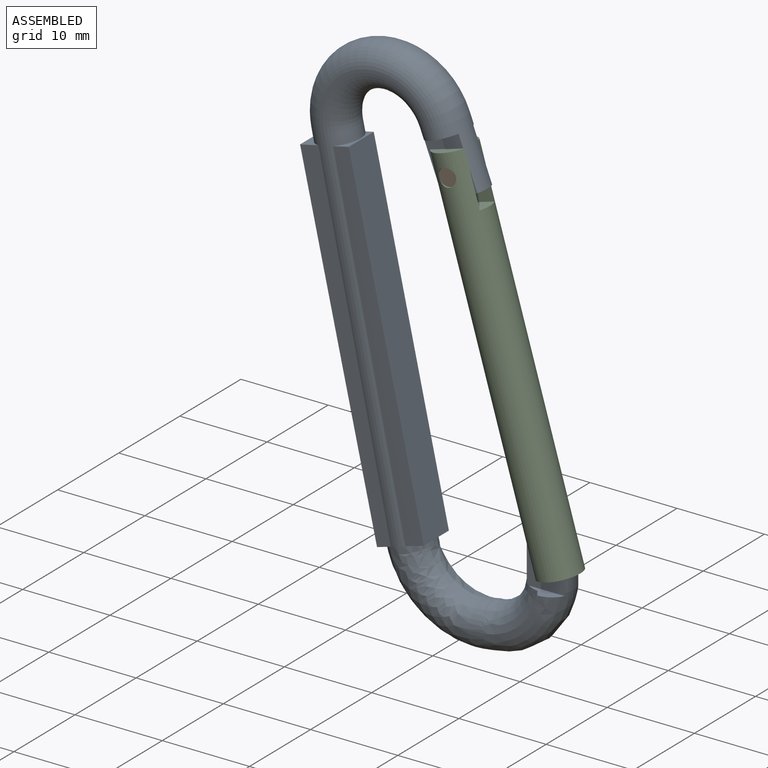
[diagram: assembled view]
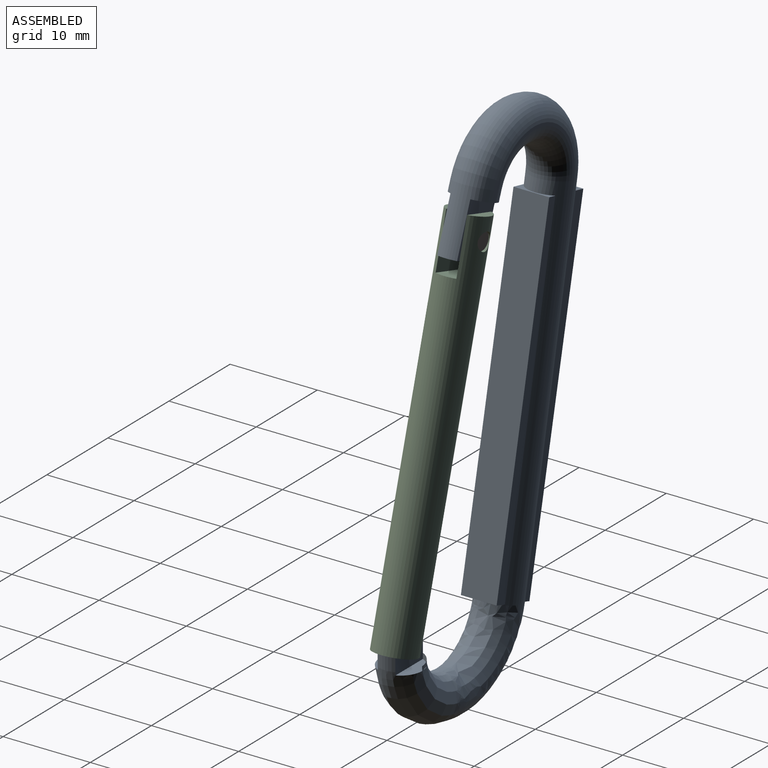
[diagram: assembled view, second angle]
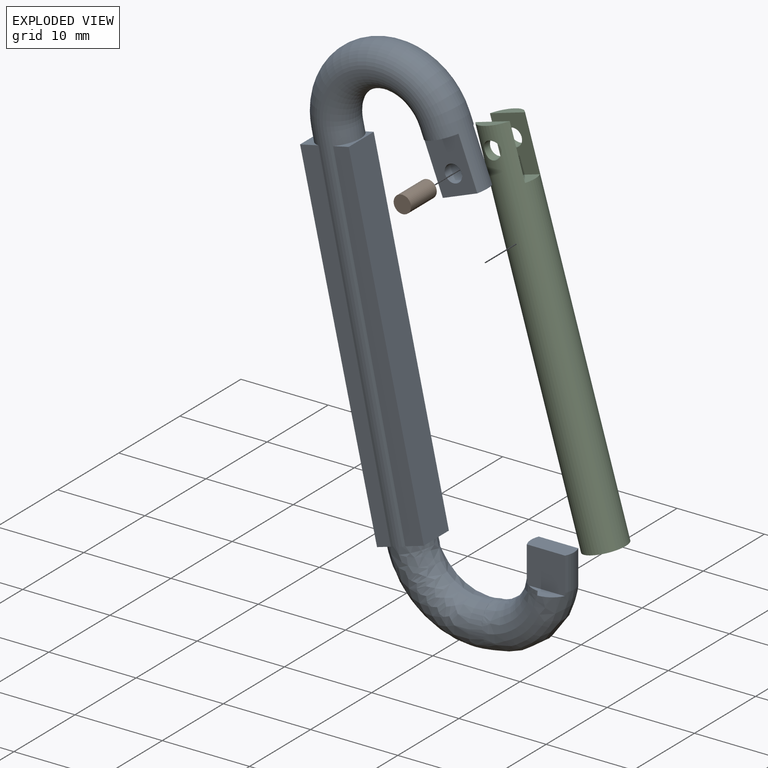
[diagram: exploded view]
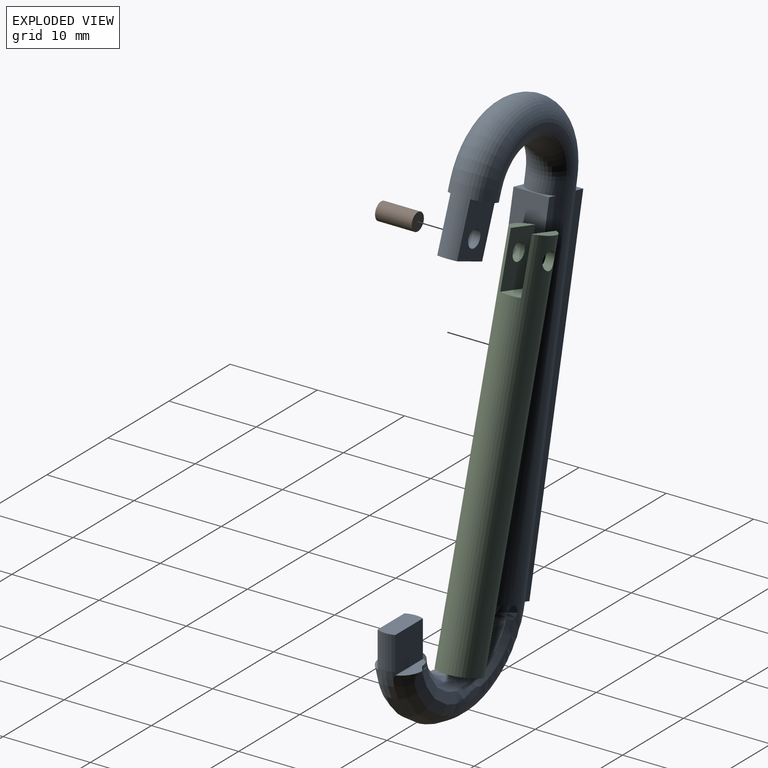
[diagram: exploded view, second angle]
ASSEMBLY  parts=3 mates=2
PART A: 30 faces, bbox 30.8x5.2x60.9 mm
  f0: cylinder r=2.46mm len=3.57mm, axis (0,0,1), area 7.6mm2, adj f3,f5,f24,f27
  f1: cylinder r=2.46mm len=3.85mm, axis (0,0,1), area 8.2mm2, adj f3,f5,f24,f27
  f2: cylinder r=2.46mm len=8.5mm, axis (-0.36,0,0.93), area 47.8mm2, adj f4,f6,f19,f20,f21,f22
  f3: plane 4.91x2.06mm, normal (0,0,1), area 9.8mm2, adj f0,f1,f24,f27
  f4: plane 4.58x2.32mm, normal (0.36,0,-0.93), area 11mm2, adj f2,f19,f21
  f5: bspline ~9.15x8.97mm, area 144.5mm2, adj f0,f1,f8,f23,f24,f25,f26,f27
  f6: torus R=6.46mm, axis (0,-1,0), area 297.1mm2, adj f2,f7
  f7: cylinder r=2.46mm len=41.69mm, axis (0.21,0,-0.98), area 240.6mm2, adj f6,f8,f10,f12,f13,f14,f16,f17
  f8: bspline ~12.84x9.48mm, area 198.8mm2, adj f5,f7,f10,f11,f17
  f9: plane 39.36x8.82mm, normal (-0.98,0,-0.22), area 165.4mm2, adj f10,f11,f12,f17
  f10: plane 39.83x10.4mm, normal (0,-1,0), area 76.4mm2, adj f7,f8,f9,f11,f12
  f11: plane 4.1x1.58mm, normal (0.28,0,-0.96), area 1.6mm2, adj f8,f9,f10,f17
  f12: plane 4.11x2.11mm, normal (-0.22,0,0.98), area 3.7mm2, adj f7,f9,f10,f17
  f13: plane 4.28x2.31mm, normal (0.28,0,-0.96), area 4mm2, adj f7,f14,f15,f18
  f14: plane 39.64x10.4mm, normal (0,-1,0), area 81mm2, adj f7,f13,f15,f16
  f15: plane 39.01x8.61mm, normal (0.98,0,0.22), area 163.8mm2, adj f13,f14,f16,f18
  f16: plane 4.12x1.81mm, normal (-0.22,0,0.98), area 2.4mm2, adj f7,f14,f15,f18
  f17: plane 39.65x9.63mm, normal (0,1,0), area 43.8mm2, adj f7,f8,f9,f11,f12
  f18: plane 39.41x9.61mm, normal (0,1,0), area 48.6mm2, adj f7,f13,f15,f16
  f19: plane 7.19x6.27mm, normal (0,1,0), area 23.3mm2, adj f2,f4,f20,f29
  f20: plane 4.11x1.59mm, normal (0.36,0,-0.93), area 4.3mm2, adj f2,f19
  f21: plane 7.13x6.12mm, normal (0,-1,0), area 22.3mm2, adj f2,f4,f22,f29
  f22: plane 3.96x1.53mm, normal (0.36,0,-0.93), area 3.7mm2, adj f2,f21
  f23: cylinder r=2.46mm len=2.26mm, axis (0,0,1), area 1.6mm2, adj f5,f24,f25
  f24: plane 4.55x4.24mm, normal (0,1,0), area 19mm2, adj f0,f1,f3,f5,f23,f25
  f25: plane 4.78x1.8mm, normal (0,0,1), area 4.8mm2, adj f5,f23,f24
  f26: cylinder r=2.46mm len=2.2mm, axis (0,0,1), area 1.5mm2, adj f5,f27,f28
  f27: plane 4.43x4.24mm, normal (0,-1,0), area 18.4mm2, adj f0,f1,f3,f5,f26,f28
  f28: plane 4.61x1.62mm, normal (0,0,1), area 4.2mm2, adj f5,f26,f27
  f29: cylinder r=1mm len=2.32mm, axis (0,-1,0), area 14.6mm2, adj f19,f21
PART B: 3 faces, bbox 2x4.2x2 mm
  f0: cylinder r=1mm len=4.2mm, axis (0,1,0), area 26.4mm2, adj f1,f2
  f1: plane 2x2mm, normal (0,-1,0), area 3.1mm2, adj f0
  f2: plane 2x2mm, normal (0,1,0), area 3.1mm2, adj f0
PART C: 13 faces, bbox 4.8x43x4.8 mm
  f0: plane 4.77x4.77mm, normal (0,-1,0), area 7.2mm2, adj f1,f9,f10,f11
  f1: cylinder r=2.39mm len=43mm, axis (0,1,0), area 592.8mm2, adj f0,f2,f3,f4,f5,f6,f7,f8
  f2: plane 3.03x2.91mm, normal (0,1,0), area 3.4mm2, adj f1,f5
  f3: plane 3.07x2.96mm, normal (0,1,0), area 3.5mm2, adj f1,f4
  f4: plane 6.2x3mm, normal (-0.72,0,-0.69), area 22.6mm2, adj f1,f3,f6,f8
  f5: plane 6.2x2.97mm, normal (0.72,0,0.69), area 22.3mm2, adj f1,f2,f6,f7
  f6: plane 4.64x4.58mm, normal (0,1,0), area 10.9mm2, adj f1,f4,f5
  f7: cylinder r=1mm len=2.25mm, axis (-0.72,0,-0.69), area 6.6mm2, adj f1,f5
  f8: cylinder r=1mm len=2.28mm, axis (-0.72,0,-0.69), area 6.9mm2, adj f1,f4
  f9: plane 5.6x2.7mm, normal (0.75,0,0.66), area 20.1mm2, adj f0,f1,f11,f12
  f10: plane 5.6x2.84mm, normal (-0.79,0,-0.61), area 20.1mm2, adj f0,f1,f11,f12
  f11: cylinder r=1.63mm len=5.6mm, axis (0,-1,0), area 17mm2, adj f0,f9,f10,f12
  f12: plane 4.35x4.28mm, normal (0,-1,0), area 10.7mm2, adj f1,f9,f10,f11
PLACE A t=(-15.53,-7.19,3.54)mm fixed
PLACE B rot(axis=(0,-1,0),15.3deg) t=(-48.73,-5.17,51.82)mm
PLACE C rot(axis=(0.2,0.65,0.73),136.8deg) t=(-49.43,-7.21,54.18)mm
MATE revolute C.f7 <-> A.f29  axis (0,1,0) through (-48.73,-8.43,51.82)mm
MATE revolute B.f0 <-> A.f29  axis (0,1,0) through (-48.73,-7.27,51.82)mm
